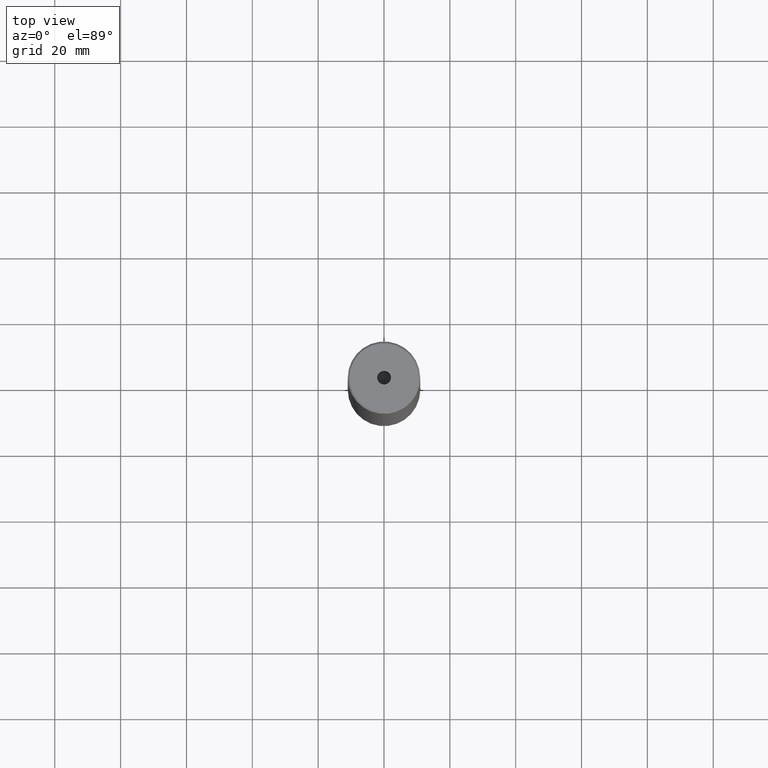
[diagram: clean part render]
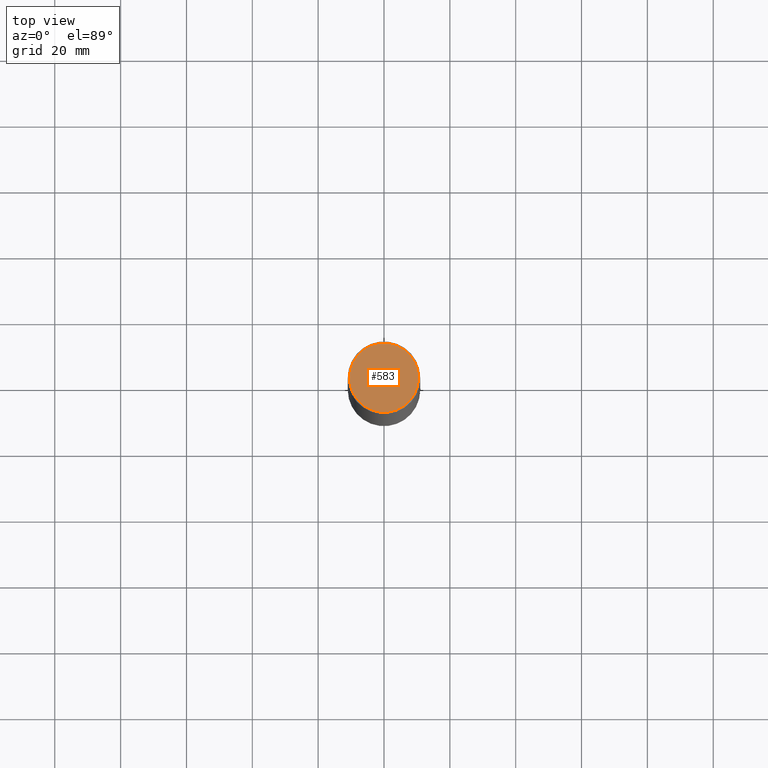
[diagram: same view with one face highlighted and labeled with its STEP entity id]
A machine part, top view. The second image highlights one B-rep face of the part: STEP entity #583.
In plain terms, the highlighted planar face has unit normal (0, -0, 1).
Its self-contained STEP definition (entity closure, byte-faithful):
#15 = PLANE ( 'NONE',  #552 ) ;
#16 = CARTESIAN_POINT ( 'NONE',  ( 0.000000000000000000, 0.000000000000000000, 0.000000000000000000 ) ) ;
#85 = DIRECTION ( 'NONE',  ( 1.000000000000000000, 0.000000000000000000, 0.000000000000000000 ) ) ;
#87 = ORIENTED_EDGE ( 'NONE', *, *, #281, .T. ) ;
#95 = DIRECTION ( 'NONE',  ( -0.000000000000000000, -0.000000000000000000, 1.000000000000000000 ) ) ;
#114 = DIRECTION ( 'NONE',  ( 1.000000000000000000, 0.000000000000000000, 0.000000000000000000 ) ) ;
#116 = EDGE_CURVE ( 'NONE', #496, #388, #454, .T. ) ;
#125 = CIRCLE ( 'NONE', #195, 10.50000000000003730 ) ;
#137 = AXIS2_PLACEMENT_3D ( 'NONE', #475, #576, #114 ) ;
#138 = EDGE_LOOP ( 'NONE', ( #521, #500 ) ) ;
#178 = DIRECTION ( 'NONE',  ( -0.000000000000000000, -0.000000000000000000, 1.000000000000000000 ) ) ;
#188 = CARTESIAN_POINT ( 'NONE',  ( -2.099999999999998757, 2.571758278209440478E-16, -1.990051048614449116E-16 ) ) ;
#195 = AXIS2_PLACEMENT_3D ( 'NONE', #16, #432, #446 ) ;
#198 = AXIS2_PLACEMENT_3D ( 'NONE', #368, #95, #548 ) ;
#216 = ORIENTED_EDGE ( 'NONE', *, *, #224, .T. ) ;
#221 = CARTESIAN_POINT ( 'NONE',  ( -10.50000000000003730, 0.000000000000000000, 0.000000000000000000 ) ) ;
#224 = EDGE_CURVE ( 'NONE', #230, #254, #425, .T. ) ;
#230 = VERTEX_POINT ( 'NONE', #221 ) ;
#254 = VERTEX_POINT ( 'NONE', #579 ) ;
#281 = EDGE_CURVE ( 'NONE', #254, #230, #125, .T. ) ;
#290 = DIRECTION ( 'NONE',  ( 0.000000000000000000, -0.000000000000000000, 1.000000000000000000 ) ) ;
#335 = CARTESIAN_POINT ( 'NONE',  ( 2.099999999999998757, 0.000000000000000000, -1.990051048614449116E-16 ) ) ;
#366 = CIRCLE ( 'NONE', #416, 2.099999999999998757 ) ;
#368 = CARTESIAN_POINT ( 'NONE',  ( 0.000000000000000000, 0.000000000000000000, -1.990051048614449116E-16 ) ) ;
#388 = VERTEX_POINT ( 'NONE', #188 ) ;
#390 = EDGE_LOOP ( 'NONE', ( #216, #87 ) ) ;
#411 = EDGE_CURVE ( 'NONE', #388, #496, #366, .T. ) ;
#416 = AXIS2_PLACEMENT_3D ( 'NONE', #546, #178, #85 ) ;
#425 = CIRCLE ( 'NONE', #137, 10.50000000000003730 ) ;
#428 = CARTESIAN_POINT ( 'NONE',  ( 0.000000000000000000, 0.000000000000000000, 0.000000000000000000 ) ) ;
#431 = FACE_BOUND ( 'NONE', #138, .T. ) ;
#432 = DIRECTION ( 'NONE',  ( -0.000000000000000000, -0.000000000000000000, 1.000000000000000000 ) ) ;
#446 = DIRECTION ( 'NONE',  ( 1.000000000000000000, 0.000000000000000000, 0.000000000000000000 ) ) ;
#454 = CIRCLE ( 'NONE', #198, 2.099999999999998757 ) ;
#474 = DIRECTION ( 'NONE',  ( 1.000000000000000000, 0.000000000000000000, 0.000000000000000000 ) ) ;
#475 = CARTESIAN_POINT ( 'NONE',  ( 0.000000000000000000, 0.000000000000000000, 0.000000000000000000 ) ) ;
#496 = VERTEX_POINT ( 'NONE', #335 ) ;
#500 = ORIENTED_EDGE ( 'NONE', *, *, #411, .F. ) ;
#519 = FACE_OUTER_BOUND ( 'NONE', #390, .T. ) ;
#521 = ORIENTED_EDGE ( 'NONE', *, *, #116, .F. ) ;
#546 = CARTESIAN_POINT ( 'NONE',  ( 0.000000000000000000, 0.000000000000000000, -1.990051048614449116E-16 ) ) ;
#548 = DIRECTION ( 'NONE',  ( 1.000000000000000000, 0.000000000000000000, 0.000000000000000000 ) ) ;
#552 = AXIS2_PLACEMENT_3D ( 'NONE', #428, #290, #474 ) ;
#576 = DIRECTION ( 'NONE',  ( -0.000000000000000000, -0.000000000000000000, 1.000000000000000000 ) ) ;
#579 = CARTESIAN_POINT ( 'NONE',  ( 10.50000000000003730, 1.316495309083406787E-15, 0.000000000000000000 ) ) ;
#583 = ADVANCED_FACE ( 'NONE', ( #431, #519 ), #15, .T. ) ;